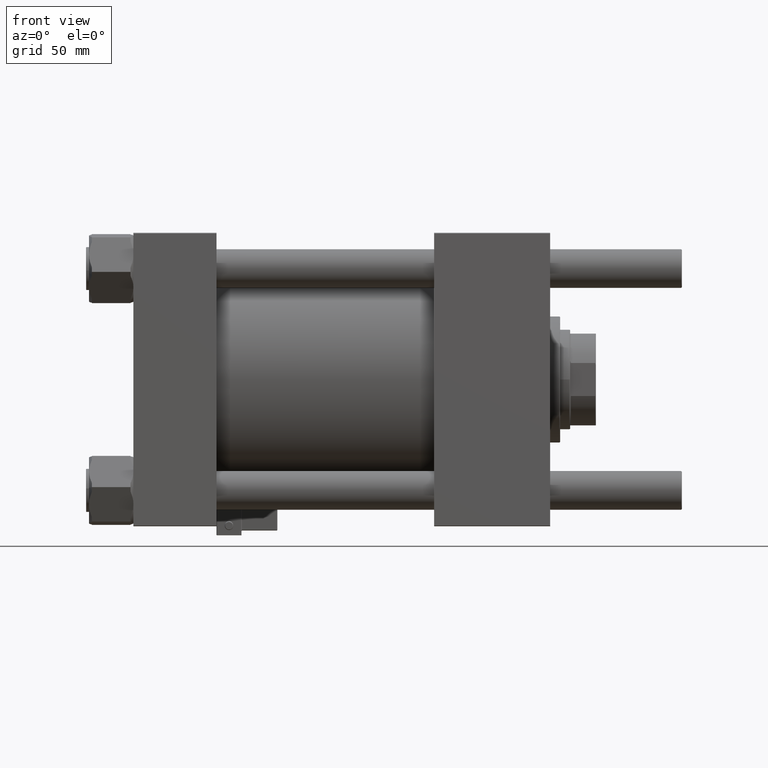
[diagram: clean part render]
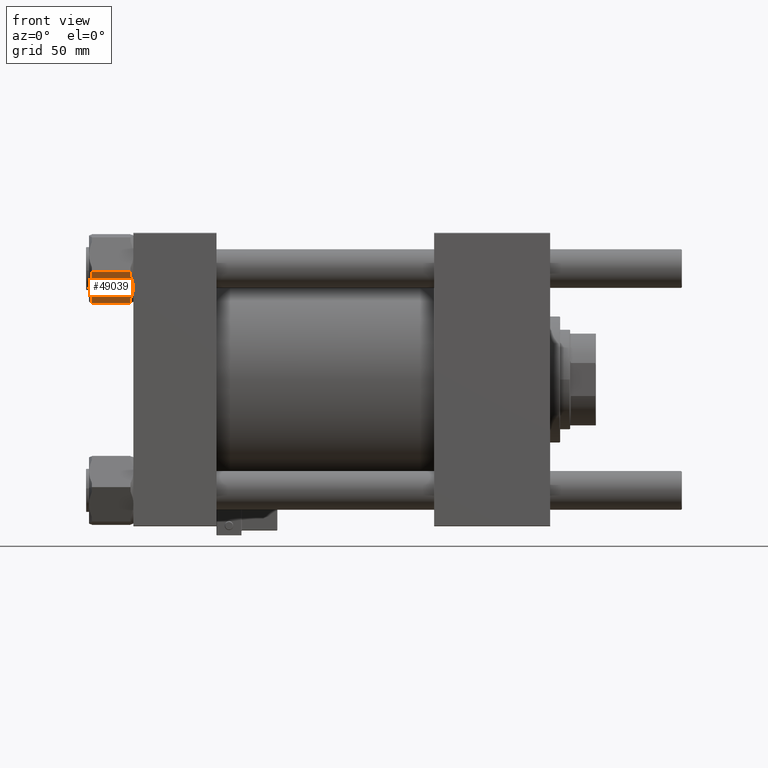
[diagram: same view with one face highlighted and labeled with its STEP entity id]
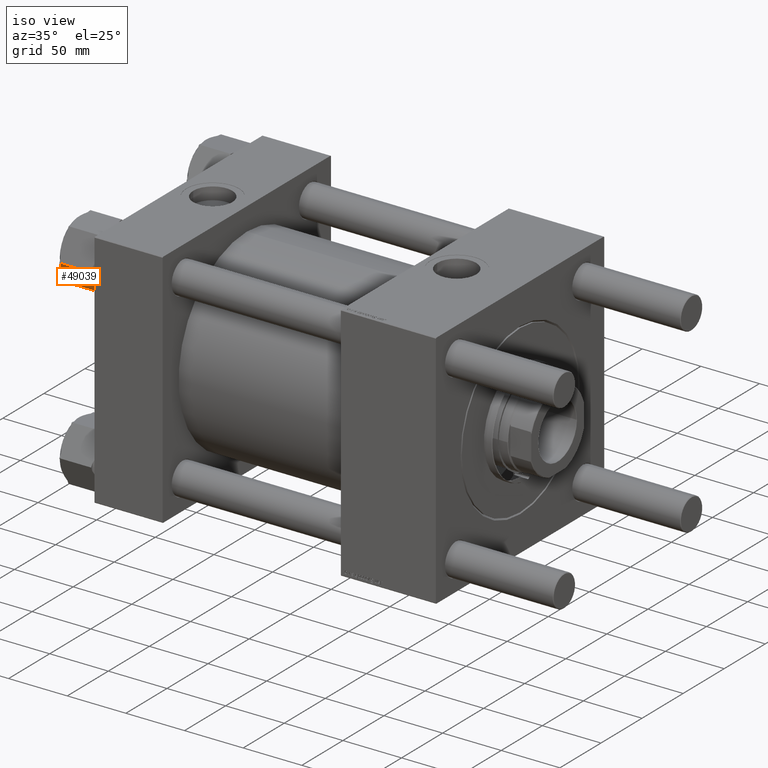
[diagram: same view with one face highlighted and labeled with its STEP entity id]
A machine part, front view. The second image highlights one B-rep face of the part: STEP entity #49039.
A second angle (iso view) of the same face is appended — the face is thin or edge-on in the first view.
In plain terms, the highlighted planar face has unit normal (-0, 0.8198, 0.5726).
Its self-contained STEP definition (entity closure, byte-faithful):
#274 = CARTESIAN_POINT ( 'NONE',  ( -26.62000000000000455, 1.322753825639812332E-14, -28.99999999999999645 ) ) ;
#695 = CARTESIAN_POINT ( 'NONE',  ( -26.62000000000000455, 1.322753825639812332E-14, -2.000000000000001776 ) ) ;
#1527 = LINE ( 'NONE', #10880, #53016 ) ;
#1662 = EDGE_CURVE ( 'NONE', #30782, #34135, #40950, .T. ) ;
#2387 = VERTEX_POINT ( 'NONE', #49810 ) ;
#3293 = CARTESIAN_POINT ( 'NONE',  ( -26.62000000000000455, 1.322753825639812332E-14, -31.00000000000000000 ) ) ;
#3341 = CARTESIAN_POINT ( 'NONE',  ( -24.86944657925254631, 3.032047466098111155, -2.000000000000000000 ) ) ;
#3449 = CARTESIAN_POINT ( 'NONE',  ( -15.06055342074746939, 20.02154878264365934, -2.000000000000000000 ) ) ;
#3850 = CARTESIAN_POINT ( 'NONE',  ( -26.62000000000000455, 1.322753825639812332E-14, -2.000000000000001776 ) ) ;
#4465 = PLANE ( 'NONE',  #55999 ) ;
#5165 = VERTEX_POINT ( 'NONE', #26622 ) ;
#5279 = EDGE_CURVE ( 'NONE', #15118, #17394, #41034, .T. ) ;
#6823 = CARTESIAN_POINT ( 'NONE',  ( -19.96500000000001052, 11.52679812437088636, -31.00000000000000000 ) ) ;
#7025 = ORIENTED_EDGE ( 'NONE', *, *, #1662, .F. ) ;
#7121 = CARTESIAN_POINT ( 'NONE',  ( -19.11853726258805963, 12.99291459228222045, -31.00000000000002487 ) ) ;
#7358 = CARTESIAN_POINT ( 'NONE',  ( -15.84797143746255443, 18.65770077089800694, -1.383425906575934228 ) ) ;
#7960 = CARTESIAN_POINT ( 'NONE',  ( -17.87195049697045590, 15.15206620637487589, -0.3633963927283482831 ) ) ;
#8165 = CARTESIAN_POINT ( 'NONE',  ( -21.02060996173662843, 9.698428037667218504, -30.90723860914735965 ) ) ;
#8690 = CARTESIAN_POINT ( 'NONE',  ( -15.06055342074746584, 20.02154878264366644, -28.99999999999999645 ) ) ;
#8724 = VERTEX_POINT ( 'NONE', #17364 ) ;
#10880 = CARTESIAN_POINT ( 'NONE',  ( -26.62000000000000455, 1.322753825639812332E-14, -2.000000000000001776 ) ) ;
#11897 = CARTESIAN_POINT ( 'NONE',  ( -18.90939003826338549, 13.35516821107455065, -0.09276139085263405970 ) ) ;
#11994 = VECTOR ( 'NONE', #12105, 1000.000000000000000 ) ;
#12105 = DIRECTION ( 'NONE',  ( -0.000000000000000000, -0.000000000000000000, 1.000000000000000000 ) ) ;
#12393 = CARTESIAN_POINT ( 'NONE',  ( -20.38949137558736524, 10.79155749447877177, -30.98821302260233779 ) ) ;
#12636 = FACE_OUTER_BOUND ( 'NONE', #51288, .T. ) ;
#13534 = LINE ( 'NONE', #274, #42237 ) ;
#15061 = CARTESIAN_POINT ( 'NONE',  ( -24.86944657925254987, 3.032047466098102273, -28.99999999999999645 ) ) ;
#15064 = LINE ( 'NONE', #33712, #26589 ) ;
#15118 = VERTEX_POINT ( 'NONE', #3341 ) ;
#15256 = EDGE_CURVE ( 'NONE', #34135, #41776, #18213, .T. ) ;
#16161 = CARTESIAN_POINT ( 'NONE',  ( -16.65815586667607207, 17.25442017599902655, -30.08229428973084651 ) ) ;
#16319 = CARTESIAN_POINT ( 'NONE',  ( -21.64584558940375913, 8.615488163845546055, -30.77092979404567430 ) ) ;
#17364 = CARTESIAN_POINT ( 'NONE',  ( -13.30999999999999872, 23.05359624874177271, -2.000000000000001776 ) ) ;
#17394 = VERTEX_POINT ( 'NONE', #3850 ) ;
#17453 = CARTESIAN_POINT ( 'NONE',  ( -20.81146273741195785, 10.06068165645955226, 1.890577538271597726E-14 ) ) ;
#18213 = B_SPLINE_CURVE_WITH_KNOTS ( 'NONE', 3,
 ( #6823, #7121, #39015, #30291, #16161, #30579, #52885, #43848 ),
 .UNSPECIFIED., .F., .F.,
 ( 4, 2, 2, 4 ),
 ( 0.01001235240522100126, 0.01501505178013392769, 0.01751640146759038397, 0.02001775115504684371 ),
 .UNSPECIFIED. ) ;
#20485 = EDGE_CURVE ( 'NONE', #2387, #39619, #20727, .T. ) ;
#20630 = CARTESIAN_POINT ( 'NONE',  ( -19.96500000000001407, 11.52679812437088813, 0.000000000000000000 ) ) ;
#20727 = B_SPLINE_CURVE_WITH_KNOTS ( 'NONE', 3,
 ( #3449, #7358, #35335, #7960, #53134, #11897, #30238, #39563, #21222, #20630 ),
 .UNSPECIFIED., .F., .F.,
 ( 4, 2, 2, 2, 4 ),
 ( 5.412492187693073262E-07, 0.005006446827219892745, 0.007509399616220453939, 0.008760876010720730633, 0.01001235240522100993 ),
 .UNSPECIFIED. ) ;
#20743 = EDGE_CURVE ( 'NONE', #5165, #8724, #21143, .T. ) ;
#21143 = LINE ( 'NONE', #58182, #11994 ) ;
#21222 = CARTESIAN_POINT ( 'NONE',  ( -19.75324869229453739, 11.89356214788591259, 1.924835315249438913E-14 ) ) ;
#22000 = EDGE_CURVE ( 'NONE', #39619, #15118, #47911, .T. ) ;
#22528 = ORIENTED_EDGE ( 'NONE', *, *, #20743, .F. ) ;
#22697 = DIRECTION ( 'NONE',  ( -0.5000000000000001110, -0.8660254037844385966, 0.000000000000000000 ) ) ;
#22783 = EDGE_CURVE ( 'NONE', #24375, #17394, #42958, .T. ) ;
#22844 = DIRECTION ( 'NONE',  ( 0.8660254037844385966, -0.5000000000000001110, 0.000000000000000000 ) ) ;
#23102 = VECTOR ( 'NONE', #22697, 1000.000000000000000 ) ;
#24098 = ORIENTED_EDGE ( 'NONE', *, *, #15256, .F. ) ;
#24375 = VERTEX_POINT ( 'NONE', #38195 ) ;
#25655 = CARTESIAN_POINT ( 'NONE',  ( -24.86944657925254987, 3.032047466098102273, -28.99999999999999645 ) ) ;
#26589 = VECTOR ( 'NONE', #52087, 1000.000000000000000 ) ;
#26622 = CARTESIAN_POINT ( 'NONE',  ( -13.30999999999999872, 23.05359624874177271, -28.99999999999999645 ) ) ;
#29475 = ORIENTED_EDGE ( 'NONE', *, *, #53490, .F. ) ;
#29684 = CARTESIAN_POINT ( 'NONE',  ( -26.62000000000000455, 1.322753825639812332E-14, -31.00000000000000000 ) ) ;
#30238 = CARTESIAN_POINT ( 'NONE',  ( -19.11895617587299867, 12.99218901318872810, -0.05818196640765550126 ) ) ;
#30291 = CARTESIAN_POINT ( 'NONE',  ( -17.06315302221505448, 16.55294452568460883, -30.29409426249536352 ) ) ;
#30579 = CARTESIAN_POINT ( 'NONE',  ( -15.85409835805183931, 18.64708863314343645, -29.58973526236486862 ) ) ;
#30742 = CARTESIAN_POINT ( 'NONE',  ( -19.96500000000001052, 11.52679812437088636, -31.00000000000000000 ) ) ;
#30782 = VERTEX_POINT ( 'NONE', #15061 ) ;
#31279 = CARTESIAN_POINT ( 'NONE',  ( -23.27184413332395252, 5.799176072742751487, -0.9177057102691522639 ) ) ;
#33712 = CARTESIAN_POINT ( 'NONE',  ( -26.62000000000000455, 1.322753825639812332E-14, -28.99999999999999645 ) ) ;
#34135 = VERTEX_POINT ( 'NONE', #34604 ) ;
#34604 = CARTESIAN_POINT ( 'NONE',  ( -19.96500000000001052, 11.52679812437088636, -31.00000000000000000 ) ) ;
#34653 = CARTESIAN_POINT ( 'NONE',  ( -20.17675130770547653, 11.16003410085586367, -31.00000000000001421 ) ) ;
#35335 = CARTESIAN_POINT ( 'NONE',  ( -16.64769565855988276, 17.27253778791400052, -0.8826024950750006592 ) ) ;
#35794 = CARTESIAN_POINT ( 'NONE',  ( -21.64175213325208347, 8.622578237878784080, -0.1878618656617418170 ) ) ;
#36075 = CARTESIAN_POINT ( 'NONE',  ( -24.47560625466582707, 3.714198918351719225, -1.691610128380186540 ) ) ;
#36239 = ORIENTED_EDGE ( 'NONE', *, *, #36563, .F. ) ;
#36563 = EDGE_CURVE ( 'NONE', #41776, #5165, #13534, .T. ) ;
#38195 = CARTESIAN_POINT ( 'NONE',  ( -26.62000000000000455, 1.322753825639812332E-14, -28.99999999999999645 ) ) ;
#38383 = CARTESIAN_POINT ( 'NONE',  ( -19.96500000000001407, 11.52679812437088813, 0.000000000000000000 ) ) ;
#39015 = CARTESIAN_POINT ( 'NONE',  ( -18.28824786674792691, 14.43101801086298330, -30.81213813433825166 ) ) ;
#39563 = CARTESIAN_POINT ( 'NONE',  ( -19.54050862441265224, 12.26203875426299383, -0.01178697739765525998 ) ) ;
#39619 = VERTEX_POINT ( 'NONE', #38383 ) ;
#40614 = CARTESIAN_POINT ( 'NONE',  ( -24.07590164194817106, 4.406507615598335370, -1.410264737635125831 ) ) ;
#40950 = B_SPLINE_CURVE_WITH_KNOTS ( 'NONE', 3,
 ( #25655, #49414, #43715, #48814, #16319, #8165, #53630, #12393, #34653, #30742 ),
 .UNSPECIFIED., .F., .F.,
 ( 4, 2, 2, 2, 4 ),
 ( 5.412492187535934886E-07, 0.005006446827219874531, 0.007509399616220437459, 0.008760876010720718490, 0.01001235240522100126 ),
 .UNSPECIFIED. ) ;
#41034 = LINE ( 'NONE', #695, #23102 ) ;
#41776 = VERTEX_POINT ( 'NONE', #8690 ) ;
#42237 = VECTOR ( 'NONE', #50251, 1000.000000000000000 ) ;
#42677 = EDGE_CURVE ( 'NONE', #8724, #2387, #1527, .T. ) ;
#42958 = LINE ( 'NONE', #29684, #57307 ) ;
#43715 = CARTESIAN_POINT ( 'NONE',  ( -23.28230434144012762, 5.781058460827763312, -30.11739750492498402 ) ) ;
#43848 = CARTESIAN_POINT ( 'NONE',  ( -15.06055342074746584, 20.02154878264366644, -28.99999999999999645 ) ) ;
#45126 = DIRECTION ( 'NONE',  ( 0.5000000000000001110, 0.8660254037844385966, 0.000000000000000000 ) ) ;
#47603 = DIRECTION ( 'NONE',  ( -0.5000000000000001110, -0.8660254037844385966, 0.000000000000000000 ) ) ;
#47806 = ORIENTED_EDGE ( 'NONE', *, *, #20485, .F. ) ;
#47911 = B_SPLINE_CURVE_WITH_KNOTS ( 'NONE', 3,
 ( #58718, #17453, #35794, #54183, #31279, #40614, #36075, #59294 ),
 .UNSPECIFIED., .F., .F.,
 ( 4, 2, 2, 4 ),
 ( 0.01001235240522100993, 0.01501505178013393463, 0.01751640146759039091, 0.02001775115504685065 ),
 .UNSPECIFIED. ) ;
#48060 = DIRECTION ( 'NONE',  ( -0.000000000000000000, -0.000000000000000000, 1.000000000000000000 ) ) ;
#48493 = ORIENTED_EDGE ( 'NONE', *, *, #22783, .T. ) ;
#48691 = ORIENTED_EDGE ( 'NONE', *, *, #5279, .F. ) ;
#48814 = CARTESIAN_POINT ( 'NONE',  ( -22.05804950302956513, 7.901530042366891493, -30.63660360727163834 ) ) ;
#49039 = ADVANCED_FACE ( 'NONE', ( #12636 ), #4465, .F. ) ;
#49414 = CARTESIAN_POINT ( 'NONE',  ( -24.08202856253745594, 4.395895477843756893, -29.61657409342405600 ) ) ;
#49810 = CARTESIAN_POINT ( 'NONE',  ( -15.06055342074746939, 20.02154878264365934, -2.000000000000000000 ) ) ;
#50251 = DIRECTION ( 'NONE',  ( 0.5000000000000001110, 0.8660254037844385966, 0.000000000000000000 ) ) ;
#51288 = EDGE_LOOP ( 'NONE', ( #29475, #48493, #48691, #53542, #47806, #55898, #22528, #36239, #24098, #7025 ) ) ;
#52087 = DIRECTION ( 'NONE',  ( 0.5000000000000001110, 0.8660254037844385966, 0.000000000000000000 ) ) ;
#52885 = CARTESIAN_POINT ( 'NONE',  ( -15.45439374533418864, 19.33939733039004238, -29.30838987161981635 ) ) ;
#53016 = VECTOR ( 'NONE', #47603, 1000.000000000000000 ) ;
#53134 = CARTESIAN_POINT ( 'NONE',  ( -18.28415441059626545, 14.43810808489622843, -0.2290702059543288927 ) ) ;
#53490 = EDGE_CURVE ( 'NONE', #24375, #30782, #15064, .T. ) ;
#53542 = ORIENTED_EDGE ( 'NONE', *, *, #22000, .F. ) ;
#53630 = CARTESIAN_POINT ( 'NONE',  ( -20.81104382412701526, 10.06140723555304106, -30.94181803359234451 ) ) ;
#54183 = CARTESIAN_POINT ( 'NONE',  ( -22.86684697778494524, 6.500651723057158549, -0.7059057375046260407 ) ) ;
#55898 = ORIENTED_EDGE ( 'NONE', *, *, #42677, .F. ) ;
#55999 = AXIS2_PLACEMENT_3D ( 'NONE', #3293, #22844, #45126 ) ;
#57307 = VECTOR ( 'NONE', #48060, 1000.000000000000000 ) ;
#58182 = CARTESIAN_POINT ( 'NONE',  ( -13.30999999999999872, 23.05359624874177271, -31.00000000000000000 ) ) ;
#58718 = CARTESIAN_POINT ( 'NONE',  ( -19.96500000000001407, 11.52679812437088813, 0.000000000000000000 ) ) ;
#59294 = CARTESIAN_POINT ( 'NONE',  ( -24.86944657925254631, 3.032047466098111155, -2.000000000000000000 ) ) ;